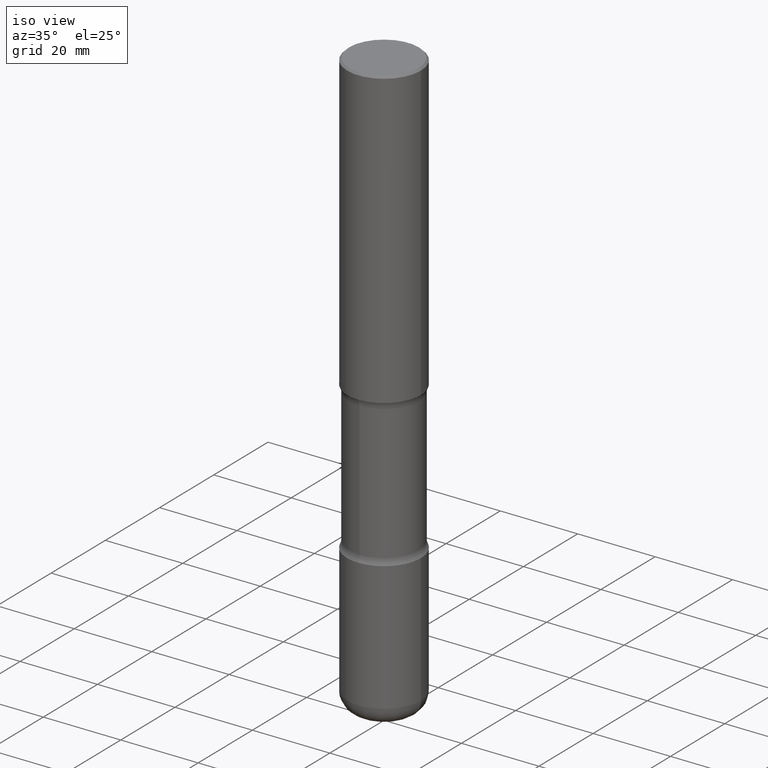
[diagram: clean part render]
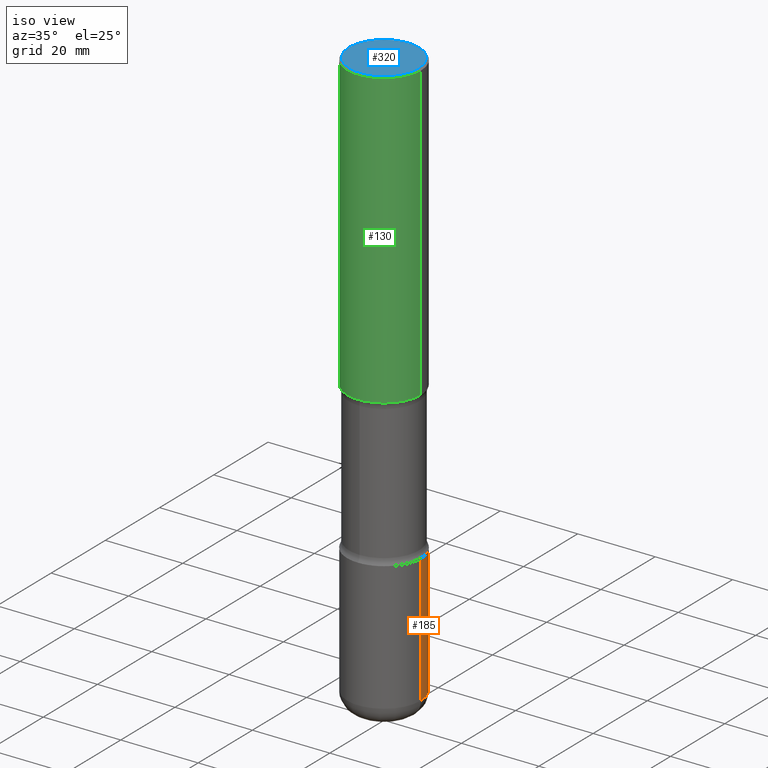
[diagram: same view with three faces highlighted in distinct colors, each labeled with its STEP entity id]
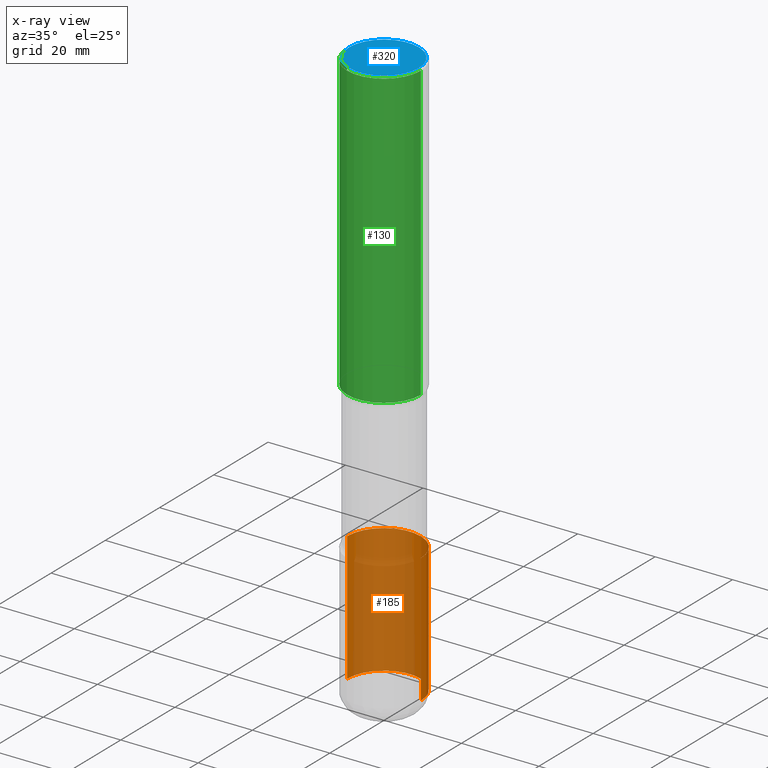
[diagram: x-ray of the same camera — body ghosted, the three highlighted faces saturated]
A machine part, iso view with three faces highlighted in distinct colors.
The next image is the same camera in x-ray (body ghosted, the three faces saturated) — at least one of them is partly hidden behind the body in this view.
Their STEP definitions:

[orange] entity #185 — the highlighted cylindrical surface (partial cylindrical patch) has radius 9.525 mm, axis along (-0, 0, 1).
#5 = ORIENTED_EDGE ( 'NONE', *, *, #288, .F. ) ;
#8 = AXIS2_PLACEMENT_3D ( 'NONE', #25, #413, #376 ) ;
#18 = CARTESIAN_POINT ( 'NONE',  ( 0.3750000000000003886, -1.833027702892650691E-14, -4.499999999999999112 ) ) ;
#25 = CARTESIAN_POINT ( 'NONE',  ( 1.100460962783311244E-28, -1.571166602479415374E-14, -4.499999999999999112 ) ) ;
#37 = CARTESIAN_POINT ( 'NONE',  ( 1.420817376393564022E-28, -2.028550657867867295E-14, -5.809999999999998721 ) ) ;
#42 = EDGE_CURVE ( 'NONE', #225, #188, #156, .T. ) ;
#68 = VECTOR ( 'NONE', #343, 39.37007874015748143 ) ;
#69 = DIRECTION ( 'NONE',  ( -2.445468806185136597E-29, 3.491481338843145583E-15, 1.000000000000000000 ) ) ;
#75 = CYLINDRICAL_SURFACE ( 'NONE', #380, 0.3750000000000004441 ) ;
#154 = EDGE_CURVE ( 'NONE', #363, #188, #179, .T. ) ;
#156 = LINE ( 'NONE', #157, #387 ) ;
#157 = CARTESIAN_POINT ( 'NONE',  ( -0.3750000000000004441, 2.664535259100378852E-15, -1.844600658845591840E-29 ) ) ;
#164 = CARTESIAN_POINT ( 'NONE',  ( -0.3750000000000003886, -1.533405104263603449E-14, -4.499999999999999112 ) ) ;
#177 = CARTESIAN_POINT ( 'NONE',  ( -0.3750000000000004996, -1.762097131957829410E-14, -5.809999999999998721 ) ) ;
#179 = CIRCLE ( 'NONE', #8, 0.3750000000000003886 ) ;
#182 = DIRECTION ( 'NONE',  ( 1.000000000000000000, -6.982962677686263555E-15, 0.000000000000000000 ) ) ;
#185 = ADVANCED_FACE ( 'NONE', ( #411 ), #75, .T. ) ;
#188 = VERTEX_POINT ( 'NONE', #164 ) ;
#225 = VERTEX_POINT ( 'NONE', #177 ) ;
#261 = CIRCLE ( 'NONE', #289, 0.3750000000000004996 ) ;
#268 = DIRECTION ( 'NONE',  ( -2.445468806185136877E-29, 3.491481338843145188E-15, 1.000000000000000000 ) ) ;
#270 = CARTESIAN_POINT ( 'NONE',  ( 0.3750000000000004996, -2.290411758281102297E-14, -5.809999999999998721 ) ) ;
#288 = EDGE_CURVE ( 'NONE', #444, #363, #391, .T. ) ;
#289 = AXIS2_PLACEMENT_3D ( 'NONE', #37, #554, #182 ) ;
#297 = EDGE_CURVE ( 'NONE', #444, #225, #261, .T. ) ;
#302 = CARTESIAN_POINT ( 'NONE',  ( 0.3750000000000004441, -2.618611004132352777E-15, 1.828566290923478164E-29 ) ) ;
#304 = ORIENTED_EDGE ( 'NONE', *, *, #297, .T. ) ;
#343 = DIRECTION ( 'NONE',  ( -2.445468806185136877E-29, 3.491481338843145188E-15, 1.000000000000000000 ) ) ;
#363 = VERTEX_POINT ( 'NONE', #18 ) ;
#376 = DIRECTION ( 'NONE',  ( 1.000000000000000000, -6.982962677686265922E-15, 0.000000000000000000 ) ) ;
#380 = AXIS2_PLACEMENT_3D ( 'NONE', #458, #69, #417 ) ;
#387 = VECTOR ( 'NONE', #268, 39.37007874015748143 ) ;
#391 = LINE ( 'NONE', #302, #68 ) ;
#411 = FACE_OUTER_BOUND ( 'NONE', #478, .T. ) ;
#413 = DIRECTION ( 'NONE',  ( -2.445468806185136597E-29, 3.491481338843145583E-15, 1.000000000000000000 ) ) ;
#417 = DIRECTION ( 'NONE',  ( 1.000000000000000000, -6.982962677686265922E-15, 4.876176775795935793E-29 ) ) ;
#444 = VERTEX_POINT ( 'NONE', #270 ) ;
#458 = CARTESIAN_POINT ( 'NONE',  ( 0.000000000000000000, 0.000000000000000000, 0.000000000000000000 ) ) ;
#478 = EDGE_LOOP ( 'NONE', ( #304, #484, #488, #5 ) ) ;
#484 = ORIENTED_EDGE ( 'NONE', *, *, #42, .T. ) ;
#488 = ORIENTED_EDGE ( 'NONE', *, *, #154, .F. ) ;
#554 = DIRECTION ( 'NONE',  ( -2.445468806185136597E-29, 3.491481338843145583E-15, 1.000000000000000000 ) ) ;

[blue] entity #320 — the highlighted planar face has unit normal (0, -0, -1).
#1 = VERTEX_POINT ( 'NONE', #104 ) ;
#43 = DIRECTION ( 'NONE',  ( 2.438088387897960049E-29, -3.491481338843145188E-15, -1.000000000000000000 ) ) ;
#49 = DIRECTION ( 'NONE',  ( -2.445468806185136597E-29, 3.491481338843145583E-15, 1.000000000000000000 ) ) ;
#60 = CIRCLE ( 'NONE', #241, 0.3550000000000000377 ) ;
#93 = CARTESIAN_POINT ( 'NONE',  ( 2.478951750578624998E-15, 0.3550000000000000377, -1.237341619044266624E-15 ) ) ;
#104 = CARTESIAN_POINT ( 'NONE',  ( 0.3550000000000000377, -2.538996582575041048E-15, 4.268512490117958041E-18 ) ) ;
#212 = DIRECTION ( 'NONE',  ( 1.000000000000000000, -6.982962677686266711E-15, 4.876231632511987623E-29 ) ) ;
#219 = CIRCLE ( 'NONE', #279, 0.3550000000000000377 ) ;
#220 = DIRECTION ( 'NONE',  ( -1.000000000000000000, 6.982962677686265922E-15, -4.876176775795935793E-29 ) ) ;
#222 = ORIENTED_EDGE ( 'NONE', *, *, #487, .T. ) ;
#229 = VERTEX_POINT ( 'NONE', #474 ) ;
#241 = AXIS2_PLACEMENT_3D ( 'NONE', #462, #49, #212 ) ;
#243 = DIRECTION ( 'NONE',  ( 1.000000000000000000, -6.982962677686266711E-15, 4.876231632511987623E-29 ) ) ;
#279 = AXIS2_PLACEMENT_3D ( 'NONE', #449, #408, #243 ) ;
#316 = ORIENTED_EDGE ( 'NONE', *, *, #472, .T. ) ;
#320 = ADVANCED_FACE ( 'NONE', ( #477 ), #436, .F. ) ;
#406 = AXIS2_PLACEMENT_3D ( 'NONE', #93, #43, #220 ) ;
#408 = DIRECTION ( 'NONE',  ( -2.445468806185136597E-29, 3.491481338843145583E-15, 1.000000000000000000 ) ) ;
#436 = PLANE ( 'NONE',  #406 ) ;
#449 = CARTESIAN_POINT ( 'NONE',  ( -1.043851414335219820E-46, 1.490343170380447200E-32, 4.268512490100411279E-18 ) ) ;
#462 = CARTESIAN_POINT ( 'NONE',  ( -1.043851414335219820E-46, 1.490343170380447200E-32, 4.268512490100411279E-18 ) ) ;
#472 = EDGE_CURVE ( 'NONE', #1, #229, #219, .T. ) ;
#474 = CARTESIAN_POINT ( 'NONE',  ( -0.3550000000000000377, 2.513866563967055858E-15, 4.268512490082953109E-18 ) ) ;
#477 = FACE_OUTER_BOUND ( 'NONE', #510, .T. ) ;
#487 = EDGE_CURVE ( 'NONE', #229, #1, #60, .T. ) ;
#510 = EDGE_LOOP ( 'NONE', ( #222, #316 ) ) ;

[green] entity #130 — the highlighted cylindrical surface (partial cylindrical patch) has radius 9.525 mm, axis along (-0, 0, 1).
#2 = AXIS2_PLACEMENT_3D ( 'NONE', #121, #418, #281 ) ;
#33 = ORIENTED_EDGE ( 'NONE', *, *, #264, .T. ) ;
#46 = EDGE_CURVE ( 'NONE', #558, #384, #544, .T. ) ;
#55 = ORIENTED_EDGE ( 'NONE', *, *, #46, .F. ) ;
#57 = CARTESIAN_POINT ( 'NONE',  ( 0.3750000000000003886, -1.309305502066178637E-14, -2.999999999999999112 ) ) ;
#86 = ORIENTED_EDGE ( 'NONE', *, *, #327, .F. ) ;
#98 = EDGE_LOOP ( 'NONE', ( #55, #228, #33, #86 ) ) ;
#112 = FACE_OUTER_BOUND ( 'NONE', #98, .T. ) ;
#121 = CARTESIAN_POINT ( 'NONE',  ( 0.000000000000000000, 0.000000000000000000, 0.000000000000000000 ) ) ;
#127 = CARTESIAN_POINT ( 'NONE',  ( 7.336406418555407548E-29, -1.047444401652943320E-14, -2.999999999999999112 ) ) ;
#130 = ADVANCED_FACE ( 'NONE', ( #112 ), #540, .T. ) ;
#141 = CARTESIAN_POINT ( 'NONE',  ( 0.3750000000000002220, -2.618611004132351594E-15, 1.828566290923477043E-29 ) ) ;
#144 = CIRCLE ( 'NONE', #525, 0.3750000000000003886 ) ;
#147 = VERTEX_POINT ( 'NONE', #282 ) ;
#162 = CARTESIAN_POINT ( 'NONE',  ( -0.3750000000000002220, 2.664535259100377275E-15, -1.844600658845590719E-29 ) ) ;
#167 = CIRCLE ( 'NONE', #232, 0.3750000000000001110 ) ;
#172 = DIRECTION ( 'NONE',  ( 1.000000000000000000, -6.982962677686265922E-15, 0.000000000000000000 ) ) ;
#184 = CARTESIAN_POINT ( 'NONE',  ( 4.890937612370289799E-31, -6.982962677686315028E-17, -0.02000000000000006981 ) ) ;
#195 = VECTOR ( 'NONE', #252, 39.37007874015748143 ) ;
#217 = LINE ( 'NONE', #141, #195 ) ;
#228 = ORIENTED_EDGE ( 'NONE', *, *, #336, .T. ) ;
#232 = AXIS2_PLACEMENT_3D ( 'NONE', #184, #393, #172 ) ;
#252 = DIRECTION ( 'NONE',  ( -2.445468806185136877E-29, 3.491481338843145188E-15, 1.000000000000000000 ) ) ;
#255 = CARTESIAN_POINT ( 'NONE',  ( -0.3750000000000003886, -2.607601562552767029E-15, -2.999999999999999112 ) ) ;
#264 = EDGE_CURVE ( 'NONE', #344, #147, #217, .T. ) ;
#281 = DIRECTION ( 'NONE',  ( 1.000000000000000000, -6.982962677686266711E-15, 4.876176775795935793E-29 ) ) ;
#282 = CARTESIAN_POINT ( 'NONE',  ( 0.3750000000000001110, -2.642516375941188423E-15, -0.02000000000000006981 ) ) ;
#323 = DIRECTION ( 'NONE',  ( 1.000000000000000000, -6.982962677686265922E-15, 0.000000000000000000 ) ) ;
#327 = EDGE_CURVE ( 'NONE', #384, #147, #167, .T. ) ;
#332 = CARTESIAN_POINT ( 'NONE',  ( -0.3750000000000001110, 2.548781377355487113E-15, -0.02000000000000006981 ) ) ;
#336 = EDGE_CURVE ( 'NONE', #558, #344, #144, .T. ) ;
#344 = VERTEX_POINT ( 'NONE', #57 ) ;
#384 = VERTEX_POINT ( 'NONE', #332 ) ;
#393 = DIRECTION ( 'NONE',  ( -2.445468806185136597E-29, 3.491481338843145583E-15, 1.000000000000000000 ) ) ;
#418 = DIRECTION ( 'NONE',  ( -2.445468806185136597E-29, 3.491481338843145583E-15, 1.000000000000000000 ) ) ;
#424 = VECTOR ( 'NONE', #494, 39.37007874015748143 ) ;
#466 = DIRECTION ( 'NONE',  ( -2.445468806185136597E-29, 3.491481338843145583E-15, 1.000000000000000000 ) ) ;
#494 = DIRECTION ( 'NONE',  ( -2.445468806185136877E-29, 3.491481338843145188E-15, 1.000000000000000000 ) ) ;
#525 = AXIS2_PLACEMENT_3D ( 'NONE', #127, #466, #323 ) ;
#540 = CYLINDRICAL_SURFACE ( 'NONE', #2, 0.3750000000000002220 ) ;
#544 = LINE ( 'NONE', #162, #424 ) ;
#558 = VERTEX_POINT ( 'NONE', #255 ) ;